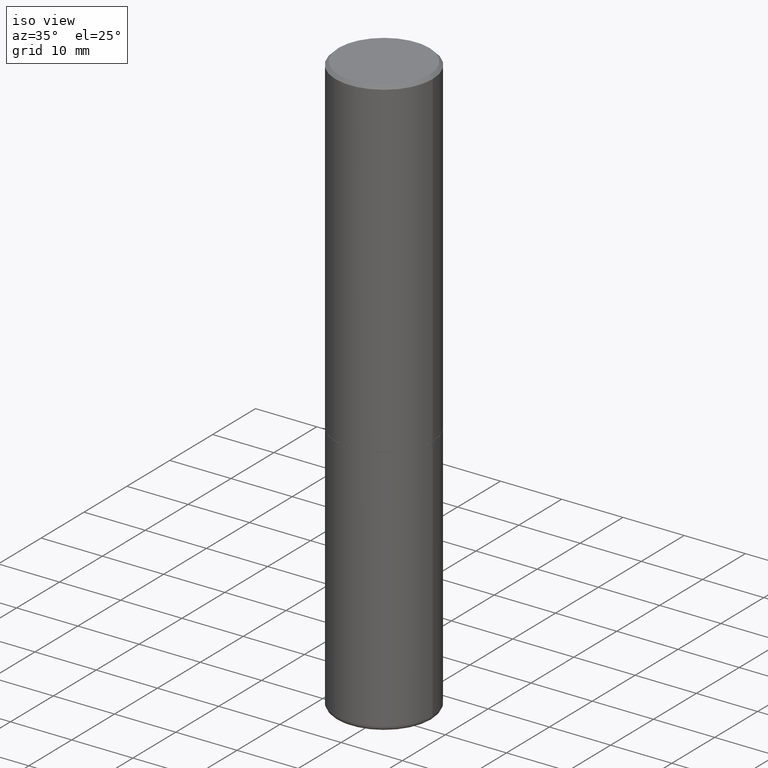
[diagram: clean part render]
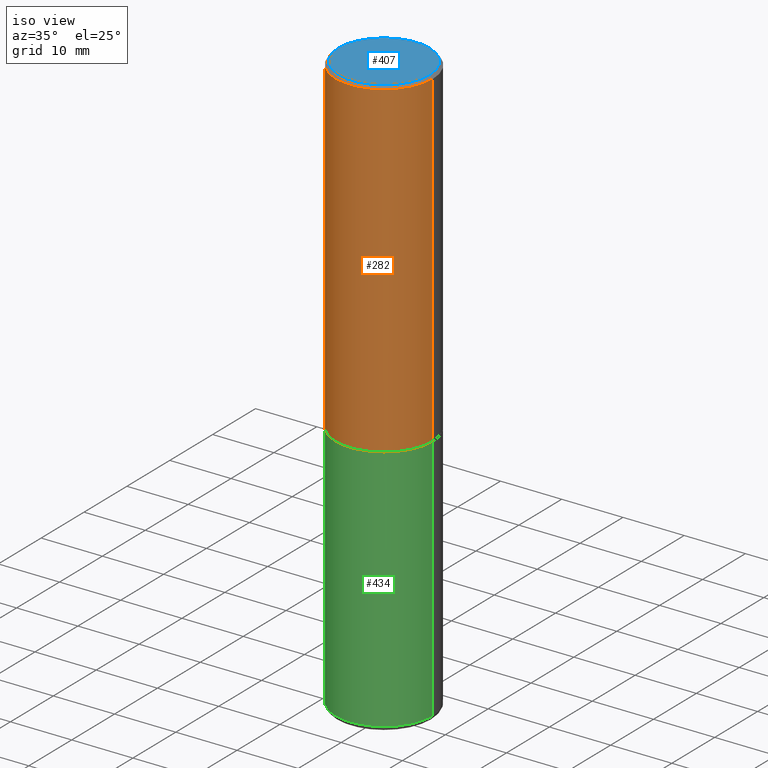
[diagram: same view with three faces highlighted in distinct colors, each labeled with its STEP entity id]
A machine part, iso view with three faces highlighted in distinct colors.
Their STEP definitions:

[orange] entity #282 — the highlighted cylindrical surface (partial cylindrical patch) has radius 7.9375 mm, axis along (-0, 0, 1).
#5 = LINE ( 'NONE', #155, #463 ) ;
#7 = AXIS2_PLACEMENT_3D ( 'NONE', #14, #162, #166 ) ;
#14 = CARTESIAN_POINT ( 'NONE',  ( 4.890937612370309067E-31, -6.982962677686343378E-17, -0.02000000000000014960 ) ) ;
#54 = CARTESIAN_POINT ( 'NONE',  ( 0.3124999999999993339, -2.213735251080462573E-15, -0.02000000000000014960 ) ) ;
#67 = FACE_OUTER_BOUND ( 'NONE', #481, .T. ) ;
#90 = DIRECTION ( 'NONE',  ( 1.000000000000000000, -6.982962677686269077E-15, 0.000000000000000000 ) ) ;
#92 = EDGE_CURVE ( 'NONE', #465, #124, #353, .T. ) ;
#112 = EDGE_CURVE ( 'NONE', #212, #190, #373, .T. ) ;
#113 = DIRECTION ( 'NONE',  ( -2.445468806185136597E-29, 3.491481338843145583E-15, 1.000000000000000000 ) ) ;
#124 = VERTEX_POINT ( 'NONE', #356 ) ;
#137 = ORIENTED_EDGE ( 'NONE', *, *, #380, .F. ) ;
#143 = CARTESIAN_POINT ( 'NONE',  ( -0.3124999999999993339, 2.112346210000090316E-15, -0.02000000000000014960 ) ) ;
#155 = CARTESIAN_POINT ( 'NONE',  ( -0.3124999999999994449, 2.220446049250309137E-15, -1.537167215704655429E-29 ) ) ;
#162 = DIRECTION ( 'NONE',  ( -2.445468806185136597E-29, 3.491481338843145583E-15, 1.000000000000000000 ) ) ;
#164 = ORIENTED_EDGE ( 'NONE', *, *, #112, .F. ) ;
#166 = DIRECTION ( 'NONE',  ( 1.000000000000000000, -6.982962677686266711E-15, 0.000000000000000000 ) ) ;
#170 = CARTESIAN_POINT ( 'NONE',  ( 0.000000000000000000, 0.000000000000000000, 0.000000000000000000 ) ) ;
#178 = CARTESIAN_POINT ( 'NONE',  ( 0.3124999999999994449, -2.182175836776954797E-15, 1.523805242436227273E-29 ) ) ;
#190 = VERTEX_POINT ( 'NONE', #54 ) ;
#212 = VERTEX_POINT ( 'NONE', #143 ) ;
#236 = ORIENTED_EDGE ( 'NONE', *, *, #92, .T. ) ;
#245 = DIRECTION ( 'NONE',  ( -2.445468806185136597E-29, 3.491481338843145583E-15, 1.000000000000000000 ) ) ;
#251 = LINE ( 'NONE', #178, #297 ) ;
#282 = ADVANCED_FACE ( 'NONE', ( #67 ), #443, .T. ) ;
#297 = VECTOR ( 'NONE', #327, 39.37007874015748143 ) ;
#301 = CARTESIAN_POINT ( 'NONE',  ( -0.3124999999999996114, -1.522421945989539863E-15, -2.124000000000000110 ) ) ;
#310 = DIRECTION ( 'NONE',  ( -2.445468806185136877E-29, 3.491481338843145188E-15, 1.000000000000000000 ) ) ;
#311 = AXIS2_PLACEMENT_3D ( 'NONE', #170, #245, #477 ) ;
#327 = DIRECTION ( 'NONE',  ( -2.445468806185136877E-29, 3.491481338843145188E-15, 1.000000000000000000 ) ) ;
#353 = CIRCLE ( 'NONE', #399, 0.3124999999999996114 ) ;
#356 = CARTESIAN_POINT ( 'NONE',  ( 0.3124999999999996114, -9.598082200479797386E-15, -2.124000000000000110 ) ) ;
#373 = CIRCLE ( 'NONE', #7, 0.3124999999999993339 ) ;
#380 = EDGE_CURVE ( 'NONE', #465, #212, #5, .T. ) ;
#399 = AXIS2_PLACEMENT_3D ( 'NONE', #424, #113, #90 ) ;
#424 = CARTESIAN_POINT ( 'NONE',  ( 5.194175744337230786E-29, -7.415906363702842194E-15, -2.124000000000000110 ) ) ;
#443 = CYLINDRICAL_SURFACE ( 'NONE', #311, 0.3124999999999994449 ) ;
#461 = EDGE_CURVE ( 'NONE', #124, #190, #251, .T. ) ;
#463 = VECTOR ( 'NONE', #310, 39.37007874015748143 ) ;
#465 = VERTEX_POINT ( 'NONE', #301 ) ;
#477 = DIRECTION ( 'NONE',  ( 1.000000000000000000, -6.982962677686267499E-15, 4.876176775795935793E-29 ) ) ;
#481 = EDGE_LOOP ( 'NONE', ( #137, #236, #485, #164 ) ) ;
#485 = ORIENTED_EDGE ( 'NONE', *, *, #461, .T. ) ;

[blue] entity #407 — the highlighted planar face has unit normal (0, -0, -1).
#29 = EDGE_LOOP ( 'NONE', ( #106, #41 ) ) ;
#41 = ORIENTED_EDGE ( 'NONE', *, *, #462, .T. ) ;
#44 = CARTESIAN_POINT ( 'NONE',  ( 0.2924999999999991496, -2.110215457714314803E-15, 4.268512490114932791E-18 ) ) ;
#68 = CIRCLE ( 'NONE', #382, 0.2924999999999991496 ) ;
#77 = DIRECTION ( 'NONE',  ( 2.438088387897960049E-29, -3.491481338843145188E-15, -1.000000000000000000 ) ) ;
#106 = ORIENTED_EDGE ( 'NONE', *, *, #195, .T. ) ;
#111 = DIRECTION ( 'NONE',  ( -2.445468806185136597E-29, 3.491481338843145583E-15, 1.000000000000000000 ) ) ;
#195 = EDGE_CURVE ( 'NONE', #298, #367, #68, .T. ) ;
#204 = FACE_OUTER_BOUND ( 'NONE', #29, .T. ) ;
#231 = CIRCLE ( 'NONE', #346, 0.2924999999999991496 ) ;
#250 = CARTESIAN_POINT ( 'NONE',  ( -0.2924999999999991496, 2.077431396611658667E-15, 4.268512490086005323E-18 ) ) ;
#254 = CARTESIAN_POINT ( 'NONE',  ( 2.042516583223227017E-15, 0.2924999999999991496, -1.019124035366567042E-15 ) ) ;
#275 = AXIS2_PLACEMENT_3D ( 'NONE', #254, #77, #368 ) ;
#280 = DIRECTION ( 'NONE',  ( -2.445468806185136597E-29, 3.491481338843145583E-15, 1.000000000000000000 ) ) ;
#298 = VERTEX_POINT ( 'NONE', #250 ) ;
#324 = DIRECTION ( 'NONE',  ( 1.000000000000000000, -6.982962677686266711E-15, 4.876067333457703490E-29 ) ) ;
#346 = AXIS2_PLACEMENT_3D ( 'NONE', #483, #111, #452 ) ;
#367 = VERTEX_POINT ( 'NONE', #44 ) ;
#368 = DIRECTION ( 'NONE',  ( -1.000000000000000000, 6.982962677686265922E-15, -4.876176775795935793E-29 ) ) ;
#382 = AXIS2_PLACEMENT_3D ( 'NONE', #393, #280, #324 ) ;
#393 = CARTESIAN_POINT ( 'NONE',  ( -1.043851414335219820E-46, 1.490343170380447200E-32, 4.268512490100411279E-18 ) ) ;
#407 = ADVANCED_FACE ( 'NONE', ( #204 ), #423, .F. ) ;
#423 = PLANE ( 'NONE',  #275 ) ;
#452 = DIRECTION ( 'NONE',  ( 1.000000000000000000, -6.982962677686266711E-15, 4.876067333457703490E-29 ) ) ;
#462 = EDGE_CURVE ( 'NONE', #367, #298, #231, .T. ) ;
#483 = CARTESIAN_POINT ( 'NONE',  ( -1.043851414335219820E-46, 1.490343170380447200E-32, 4.268512490100411279E-18 ) ) ;

[green] entity #434 — the highlighted cylindrical surface (partial cylindrical patch) has radius 7.9375 mm, axis along (-0, 0, 1).
#10 = CARTESIAN_POINT ( 'NONE',  ( 9.097146752487473464E-29, -1.298831456884382869E-14, -3.720001142308075437 ) ) ;
#12 = EDGE_CURVE ( 'NONE', #262, #72, #315, .T. ) ;
#13 = AXIS2_PLACEMENT_3D ( 'NONE', #10, #135, #432 ) ;
#26 = DIRECTION ( 'NONE',  ( -2.445468806185136597E-29, 3.491481338843145583E-15, 1.000000000000000000 ) ) ;
#38 = CARTESIAN_POINT ( 'NONE',  ( 0.3124999999999992784, -1.517049040562078230E-14, -3.720001142308075437 ) ) ;
#40 = EDGE_CURVE ( 'NONE', #262, #258, #271, .T. ) ;
#60 = DIRECTION ( 'NONE',  ( 1.000000000000000000, -6.982962677686267499E-15, 4.876176775795935793E-29 ) ) ;
#61 = EDGE_LOOP ( 'NONE', ( #229, #122, #149, #131 ) ) ;
#72 = VERTEX_POINT ( 'NONE', #38 ) ;
#76 = CARTESIAN_POINT ( 'NONE',  ( -0.3124999999999996114, -7.983410157692447018E-15, -2.125000000000000000 ) ) ;
#87 = CARTESIAN_POINT ( 'NONE',  ( -0.3124999999999994449, 2.220446049250309137E-15, -1.537167215704655429E-29 ) ) ;
#91 = AXIS2_PLACEMENT_3D ( 'NONE', #319, #283, #289 ) ;
#104 = CARTESIAN_POINT ( 'NONE',  ( 0.000000000000000000, 0.000000000000000000, 0.000000000000000000 ) ) ;
#120 = VECTOR ( 'NONE', #375, 39.37007874015748143 ) ;
#122 = ORIENTED_EDGE ( 'NONE', *, *, #12, .T. ) ;
#131 = ORIENTED_EDGE ( 'NONE', *, *, #197, .F. ) ;
#135 = DIRECTION ( 'NONE',  ( -2.445468806185136597E-29, 3.491481338843145583E-15, 1.000000000000000000 ) ) ;
#144 = CARTESIAN_POINT ( 'NONE',  ( 0.3124999999999994449, -2.182175836776954797E-15, 1.523805242436227273E-29 ) ) ;
#149 = ORIENTED_EDGE ( 'NONE', *, *, #154, .T. ) ;
#154 = EDGE_CURVE ( 'NONE', #72, #412, #444, .T. ) ;
#197 = EDGE_CURVE ( 'NONE', #258, #412, #362, .T. ) ;
#229 = ORIENTED_EDGE ( 'NONE', *, *, #40, .F. ) ;
#258 = VERTEX_POINT ( 'NONE', #76 ) ;
#262 = VERTEX_POINT ( 'NONE', #486 ) ;
#271 = LINE ( 'NONE', #87, #120 ) ;
#283 = DIRECTION ( 'NONE',  ( -2.445468806185136597E-29, 3.491481338843145583E-15, 1.000000000000000000 ) ) ;
#289 = DIRECTION ( 'NONE',  ( 1.000000000000000000, -6.982962677686269077E-15, 0.000000000000000000 ) ) ;
#315 = CIRCLE ( 'NONE', #13, 0.3124999999999992784 ) ;
#319 = CARTESIAN_POINT ( 'NONE',  ( 5.196621213143415268E-29, -7.419397845041685201E-15, -2.125000000000000000 ) ) ;
#362 = CIRCLE ( 'NONE', #91, 0.3124999999999996114 ) ;
#365 = CYLINDRICAL_SURFACE ( 'NONE', #415, 0.3124999999999994449 ) ;
#370 = DIRECTION ( 'NONE',  ( -2.445468806185136877E-29, 3.491481338843145188E-15, 1.000000000000000000 ) ) ;
#375 = DIRECTION ( 'NONE',  ( -2.445468806185136877E-29, 3.491481338843145188E-15, 1.000000000000000000 ) ) ;
#412 = VERTEX_POINT ( 'NONE', #491 ) ;
#415 = AXIS2_PLACEMENT_3D ( 'NONE', #104, #26, #60 ) ;
#432 = DIRECTION ( 'NONE',  ( 1.000000000000000000, -6.982962677686266711E-15, 0.000000000000000000 ) ) ;
#434 = ADVANCED_FACE ( 'NONE', ( #446 ), #365, .T. ) ;
#444 = LINE ( 'NONE', #144, #459 ) ;
#446 = FACE_OUTER_BOUND ( 'NONE', #61, .T. ) ;
#459 = VECTOR ( 'NONE', #370, 39.37007874015748143 ) ;
#486 = CARTESIAN_POINT ( 'NONE',  ( -0.3124999999999992784, -7.983410157692447018E-15, -3.720001142308075437 ) ) ;
#491 = CARTESIAN_POINT ( 'NONE',  ( 0.3124999999999996114, -9.601573681818640393E-15, -2.125000000000000000 ) ) ;